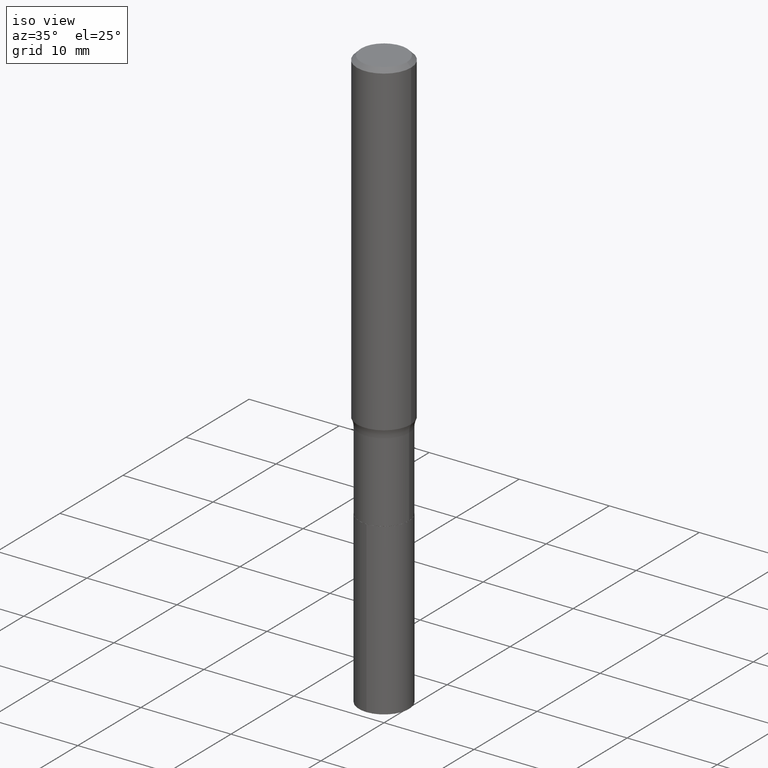
[diagram: clean part render]
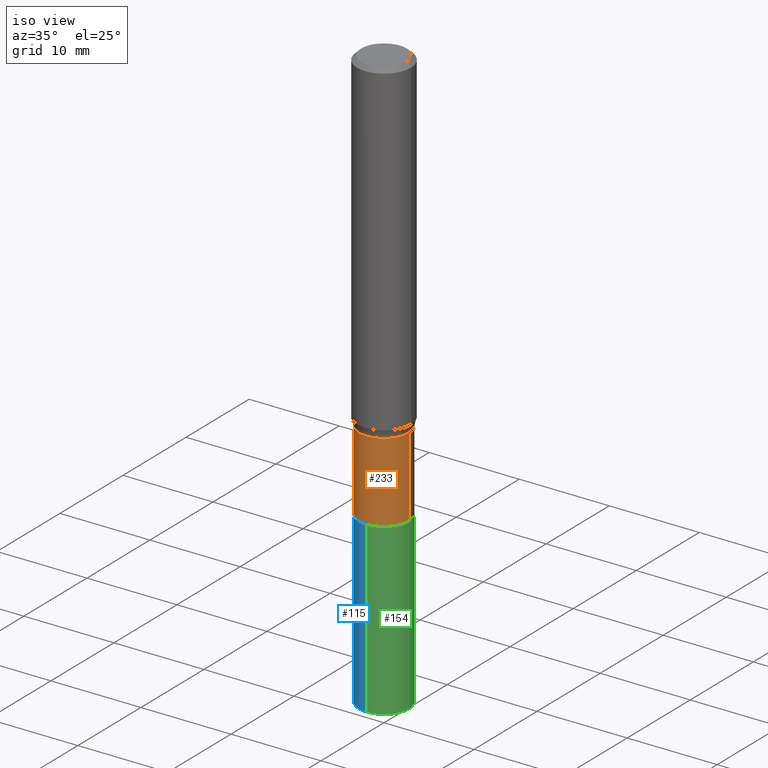
[diagram: same view with three faces highlighted in distinct colors, each labeled with its STEP entity id]
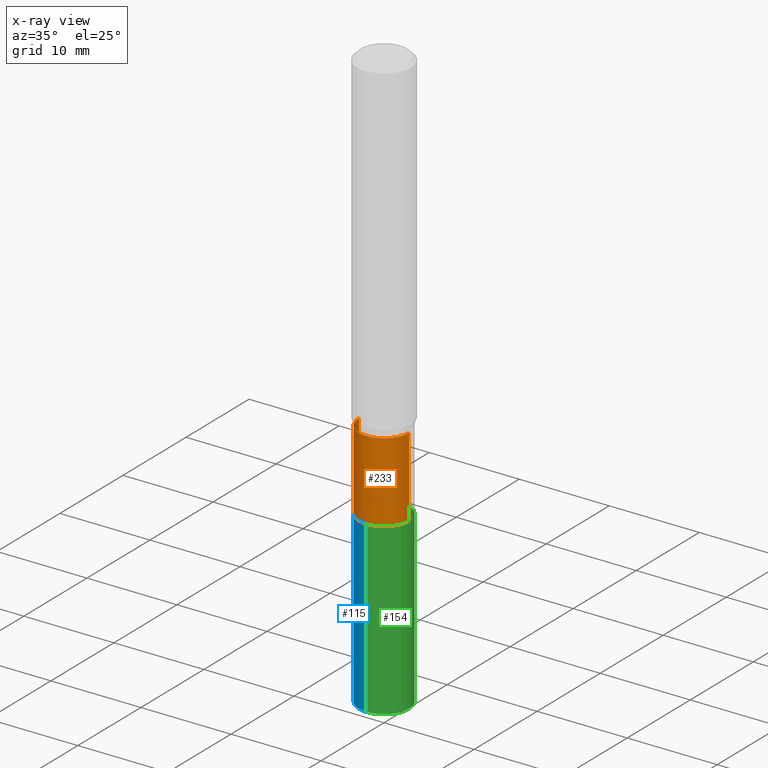
[diagram: x-ray of the same camera — body ghosted, the three highlighted faces saturated]
A machine part, iso view with three faces highlighted in distinct colors.
The next image is the same camera in x-ray (body ghosted, the three faces saturated) — at least one of them is partly hidden behind the body in this view.
Their STEP definitions:

[orange] entity #233 — the highlighted cylindrical surface (edge-blend (fillet) strip) has radius 2.7788 mm, axis along (-0, 0, 1).
#6 = ORIENTED_EDGE ( 'NONE', *, *, #490, .F. ) ;
#18 = CARTESIAN_POINT ( 'NONE',  ( -0.1093999999999999834, 7.773337529215494852E-16, -5.381314988738866015E-30 ) ) ;
#25 = EDGE_CURVE ( 'NONE', #454, #120, #171, .T. ) ;
#33 = AXIS2_PLACEMENT_3D ( 'NONE', #57, #174, #137 ) ;
#48 = CIRCLE ( 'NONE', #165, 0.1093999999999999695 ) ;
#57 = CARTESIAN_POINT ( 'NONE',  ( 4.427521273598189436E-29, -6.321326963975514491E-15, -1.810499999999999998 ) ) ;
#84 = EDGE_CURVE ( 'NONE', #314, #240, #151, .T. ) ;
#120 = VERTEX_POINT ( 'NONE', #202 ) ;
#127 = ORIENTED_EDGE ( 'NONE', *, *, #455, .T. ) ;
#137 = DIRECTION ( 'NONE',  ( 1.000000000000000000, -6.982962677686269866E-15, 0.000000000000000000 ) ) ;
#151 = LINE ( 'NONE', #304, #336 ) ;
#165 = AXIS2_PLACEMENT_3D ( 'NONE', #471, #247, #474 ) ;
#171 = LINE ( 'NONE', #18, #188 ) ;
#174 = DIRECTION ( 'NONE',  ( -2.445468806185136597E-29, 3.491481338843145583E-15, 1.000000000000000000 ) ) ;
#188 = VECTOR ( 'NONE', #465, 39.37007874015748143 ) ;
#202 = CARTESIAN_POINT ( 'NONE',  ( -0.1093999999999999695, -4.937697476563853052E-15, -1.463199999999999834 ) ) ;
#207 = AXIS2_PLACEMENT_3D ( 'NONE', #392, #351, #286 ) ;
#233 = ADVANCED_FACE ( 'NONE', ( #355 ), #361, .T. ) ;
#236 = ORIENTED_EDGE ( 'NONE', *, *, #25, .F. ) ;
#240 = VERTEX_POINT ( 'NONE', #396 ) ;
#247 = DIRECTION ( 'NONE',  ( -2.445468806185136597E-29, 3.491481338843145583E-15, 1.000000000000000000 ) ) ;
#248 = CARTESIAN_POINT ( 'NONE',  ( -0.1093999999999999972, -4.937697476563853052E-15, -1.810499999999999998 ) ) ;
#259 = CARTESIAN_POINT ( 'NONE',  ( 0.1093999999999999972, -7.085263080914392852E-15, -1.810499999999999998 ) ) ;
#286 = DIRECTION ( 'NONE',  ( 1.000000000000000000, -6.982962677686266711E-15, 4.876176775795935793E-29 ) ) ;
#304 = CARTESIAN_POINT ( 'NONE',  ( 0.1093999999999999834, -7.639361169388774732E-16, 5.334537392720753208E-30 ) ) ;
#314 = VERTEX_POINT ( 'NONE', #259 ) ;
#336 = VECTOR ( 'NONE', #453, 39.37007874015748143 ) ;
#342 = ORIENTED_EDGE ( 'NONE', *, *, #84, .T. ) ;
#351 = DIRECTION ( 'NONE',  ( -2.445468806185136597E-29, 3.491481338843145583E-15, 1.000000000000000000 ) ) ;
#355 = FACE_OUTER_BOUND ( 'NONE', #443, .T. ) ;
#361 = CYLINDRICAL_SURFACE ( 'NONE', #207, 0.1093999999999999834 ) ;
#392 = CARTESIAN_POINT ( 'NONE',  ( 0.000000000000000000, 0.000000000000000000, 0.000000000000000000 ) ) ;
#396 = CARTESIAN_POINT ( 'NONE',  ( 0.1093999999999999695, -5.872671611934168353E-15, -1.463199999999999834 ) ) ;
#437 = CIRCLE ( 'NONE', #33, 0.1093999999999999972 ) ;
#443 = EDGE_LOOP ( 'NONE', ( #236, #127, #342, #6 ) ) ;
#453 = DIRECTION ( 'NONE',  ( -2.445468806185136877E-29, 3.491481338843145188E-15, 1.000000000000000000 ) ) ;
#454 = VERTEX_POINT ( 'NONE', #248 ) ;
#455 = EDGE_CURVE ( 'NONE', #454, #314, #437, .T. ) ;
#465 = DIRECTION ( 'NONE',  ( -2.445468806185136877E-29, 3.491481338843145188E-15, 1.000000000000000000 ) ) ;
#471 = CARTESIAN_POINT ( 'NONE',  ( 3.578209957210091410E-29, -5.108735494995289992E-15, -1.463199999999999834 ) ) ;
#474 = DIRECTION ( 'NONE',  ( 1.000000000000000000, -6.982962677686271444E-15, 0.000000000000000000 ) ) ;
#490 = EDGE_CURVE ( 'NONE', #120, #240, #48, .T. ) ;

[blue] entity #115 — the highlighted cylindrical surface (edge-blend (fillet) strip) has radius 2.7788 mm, axis along (-0, 0, 1).
#7 = LINE ( 'NONE', #306, #66 ) ;
#13 = ORIENTED_EDGE ( 'NONE', *, *, #70, .T. ) ;
#15 = ORIENTED_EDGE ( 'NONE', *, *, #91, .F. ) ;
#21 = DIRECTION ( 'NONE',  ( -2.445423962145081395E-29, 3.491545558060868781E-15, 1.000000000000000000 ) ) ;
#24 = DIRECTION ( 'NONE',  ( -6.982962677686265922E-15, -1.000000000000000000, 2.497118824190368439E-15 ) ) ;
#66 = VECTOR ( 'NONE', #275, 39.37007874015748143 ) ;
#70 = EDGE_CURVE ( 'NONE', #346, #268, #7, .T. ) ;
#76 = ORIENTED_EDGE ( 'NONE', *, *, #442, .T. ) ;
#78 = DIRECTION ( 'NONE',  ( -2.445423962145081395E-29, 3.491545558060868781E-15, 1.000000000000000000 ) ) ;
#79 = AXIS2_PLACEMENT_3D ( 'NONE', #416, #78, #229 ) ;
#83 = CARTESIAN_POINT ( 'NONE',  ( 4.428744008001282238E-29, -6.323072704644935995E-15, -1.810999999999999943 ) ) ;
#91 = EDGE_CURVE ( 'NONE', #393, #268, #128, .T. ) ;
#115 = ADVANCED_FACE ( 'NONE', ( #195 ), #273, .T. ) ;
#128 = CIRCLE ( 'NONE', #79, 0.1093999999999999972 ) ;
#170 = LINE ( 'NONE', #441, #478 ) ;
#175 = CARTESIAN_POINT ( 'NONE',  ( -7.639361169388149560E-16, -0.1094000000000089068, -2.554199530893633607 ) ) ;
#195 = FACE_OUTER_BOUND ( 'NONE', #242, .T. ) ;
#211 = CARTESIAN_POINT ( 'NONE',  ( 6.246181949503559424E-29, -8.917987725489524478E-15, -2.554199530893634051 ) ) ;
#229 = DIRECTION ( 'NONE',  ( -6.982962677686265922E-15, -1.000000000000000000, 2.497118824190368439E-15 ) ) ;
#242 = EDGE_LOOP ( 'NONE', ( #380, #76, #13, #15 ) ) ;
#246 = AXIS2_PLACEMENT_3D ( 'NONE', #211, #21, #282 ) ;
#268 = VERTEX_POINT ( 'NONE', #482 ) ;
#273 = CYLINDRICAL_SURFACE ( 'NONE', #397, 0.1093999999999999972 ) ;
#275 = DIRECTION ( 'NONE',  ( -2.445423962145081676E-29, 3.491545558060868781E-15, 1.000000000000000000 ) ) ;
#282 = DIRECTION ( 'NONE',  ( -6.982962677686265922E-15, -1.000000000000000000, 4.994237648380736877E-15 ) ) ;
#287 = VERTEX_POINT ( 'NONE', #449 ) ;
#293 = DIRECTION ( 'NONE',  ( -2.445423962145081676E-29, 3.491545558060868781E-15, 1.000000000000000000 ) ) ;
#306 = CARTESIAN_POINT ( 'NONE',  ( -7.639361169388331984E-16, -0.1094000000000063116, -1.810999999999999721 ) ) ;
#316 = DIRECTION ( 'NONE',  ( -2.445423962145081395E-29, 3.491545558060868781E-15, 1.000000000000000000 ) ) ;
#346 = VERTEX_POINT ( 'NONE', #175 ) ;
#380 = ORIENTED_EDGE ( 'NONE', *, *, #451, .F. ) ;
#393 = VERTEX_POINT ( 'NONE', #456 ) ;
#397 = AXIS2_PLACEMENT_3D ( 'NONE', #83, #316, #24 ) ;
#416 = CARTESIAN_POINT ( 'NONE',  ( 4.428744008001282238E-29, -6.323072704644935995E-15, -1.810999999999999943 ) ) ;
#441 = CARTESIAN_POINT ( 'NONE',  ( 7.773337529215937600E-16, 0.1093999999999936829, -1.811000000000000165 ) ) ;
#442 = EDGE_CURVE ( 'NONE', #287, #346, #464, .T. ) ;
#449 = CARTESIAN_POINT ( 'NONE',  ( 7.773337529216120024E-16, 0.1093999999999910877, -2.554199530893634495 ) ) ;
#451 = EDGE_CURVE ( 'NONE', #287, #393, #170, .T. ) ;
#456 = CARTESIAN_POINT ( 'NONE',  ( 7.773337529216120024E-16, 0.1093999999999936690, -1.811000000000000165 ) ) ;
#464 = CIRCLE ( 'NONE', #246, 0.1093999999999999972 ) ;
#478 = VECTOR ( 'NONE', #293, 39.37007874015748143 ) ;
#482 = CARTESIAN_POINT ( 'NONE',  ( -7.639361169388331984E-16, -0.1094000000000063116, -1.810999999999999721 ) ) ;

[green] entity #154 — the highlighted cylindrical surface (edge-blend (fillet) strip) has radius 2.7788 mm, axis along (-0, 0, 1).
#5 = ORIENTED_EDGE ( 'NONE', *, *, #148, .T. ) ;
#7 = LINE ( 'NONE', #306, #66 ) ;
#8 = EDGE_LOOP ( 'NONE', ( #5, #430, #42, #102 ) ) ;
#23 = DIRECTION ( 'NONE',  ( -6.982962677686265922E-15, -1.000000000000000000, 4.994237648380736877E-15 ) ) ;
#42 = ORIENTED_EDGE ( 'NONE', *, *, #427, .F. ) ;
#52 = CARTESIAN_POINT ( 'NONE',  ( 4.428744008001282238E-29, -6.323072704644935995E-15, -1.810999999999999943 ) ) ;
#66 = VECTOR ( 'NONE', #275, 39.37007874015748143 ) ;
#70 = EDGE_CURVE ( 'NONE', #346, #268, #7, .T. ) ;
#96 = CARTESIAN_POINT ( 'NONE',  ( 6.246181949503559424E-29, -8.917987725489524478E-15, -2.554199530893634051 ) ) ;
#102 = ORIENTED_EDGE ( 'NONE', *, *, #70, .F. ) ;
#133 = DIRECTION ( 'NONE',  ( -6.982962677686265922E-15, -1.000000000000000000, 2.497118824190368439E-15 ) ) ;
#148 = EDGE_CURVE ( 'NONE', #346, #287, #458, .T. ) ;
#154 = ADVANCED_FACE ( 'NONE', ( #467 ), #472, .T. ) ;
#170 = LINE ( 'NONE', #441, #478 ) ;
#175 = CARTESIAN_POINT ( 'NONE',  ( -7.639361169388149560E-16, -0.1094000000000089068, -2.554199530893633607 ) ) ;
#196 = CIRCLE ( 'NONE', #448, 0.1093999999999999972 ) ;
#268 = VERTEX_POINT ( 'NONE', #482 ) ;
#275 = DIRECTION ( 'NONE',  ( -2.445423962145081676E-29, 3.491545558060868781E-15, 1.000000000000000000 ) ) ;
#287 = VERTEX_POINT ( 'NONE', #449 ) ;
#293 = DIRECTION ( 'NONE',  ( -2.445423962145081676E-29, 3.491545558060868781E-15, 1.000000000000000000 ) ) ;
#306 = CARTESIAN_POINT ( 'NONE',  ( -7.639361169388331984E-16, -0.1094000000000063116, -1.810999999999999721 ) ) ;
#317 = DIRECTION ( 'NONE',  ( -6.982962677686265922E-15, -1.000000000000000000, 2.497118824190368439E-15 ) ) ;
#331 = AXIS2_PLACEMENT_3D ( 'NONE', #96, #438, #23 ) ;
#333 = DIRECTION ( 'NONE',  ( -2.445423962145081395E-29, 3.491545558060868781E-15, 1.000000000000000000 ) ) ;
#346 = VERTEX_POINT ( 'NONE', #175 ) ;
#377 = AXIS2_PLACEMENT_3D ( 'NONE', #52, #440, #133 ) ;
#393 = VERTEX_POINT ( 'NONE', #456 ) ;
#427 = EDGE_CURVE ( 'NONE', #268, #393, #196, .T. ) ;
#430 = ORIENTED_EDGE ( 'NONE', *, *, #451, .T. ) ;
#438 = DIRECTION ( 'NONE',  ( -2.445423962145081395E-29, 3.491545558060868781E-15, 1.000000000000000000 ) ) ;
#440 = DIRECTION ( 'NONE',  ( -2.445423962145081395E-29, 3.491545558060868781E-15, 1.000000000000000000 ) ) ;
#441 = CARTESIAN_POINT ( 'NONE',  ( 7.773337529215937600E-16, 0.1093999999999936829, -1.811000000000000165 ) ) ;
#448 = AXIS2_PLACEMENT_3D ( 'NONE', #485, #333, #317 ) ;
#449 = CARTESIAN_POINT ( 'NONE',  ( 7.773337529216120024E-16, 0.1093999999999910877, -2.554199530893634495 ) ) ;
#451 = EDGE_CURVE ( 'NONE', #287, #393, #170, .T. ) ;
#456 = CARTESIAN_POINT ( 'NONE',  ( 7.773337529216120024E-16, 0.1093999999999936690, -1.811000000000000165 ) ) ;
#458 = CIRCLE ( 'NONE', #331, 0.1093999999999999972 ) ;
#467 = FACE_OUTER_BOUND ( 'NONE', #8, .T. ) ;
#472 = CYLINDRICAL_SURFACE ( 'NONE', #377, 0.1093999999999999972 ) ;
#478 = VECTOR ( 'NONE', #293, 39.37007874015748143 ) ;
#482 = CARTESIAN_POINT ( 'NONE',  ( -7.639361169388331984E-16, -0.1094000000000063116, -1.810999999999999721 ) ) ;
#485 = CARTESIAN_POINT ( 'NONE',  ( 4.428744008001282238E-29, -6.323072704644935995E-15, -1.810999999999999943 ) ) ;